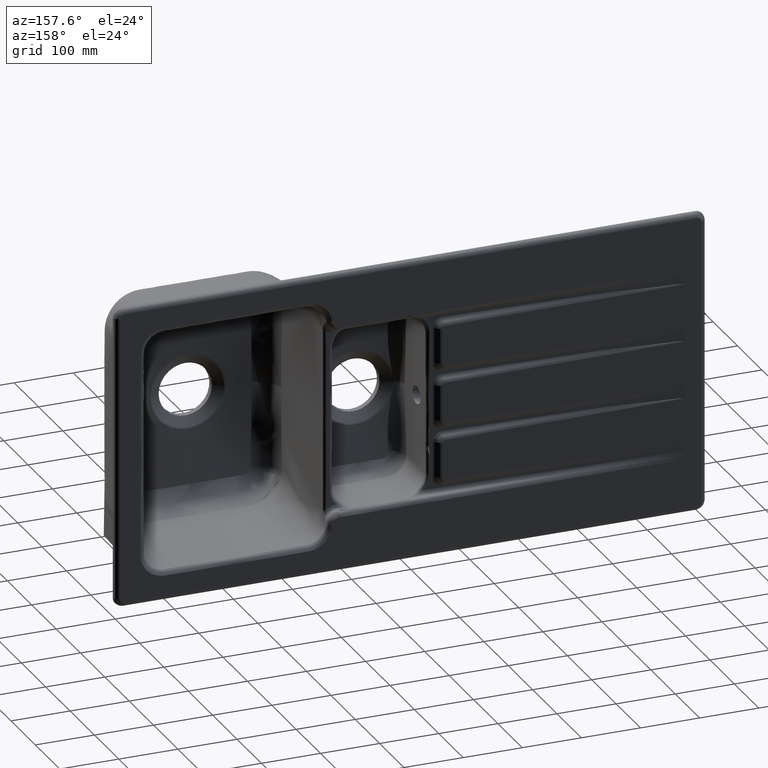
[diagram: clean part render]
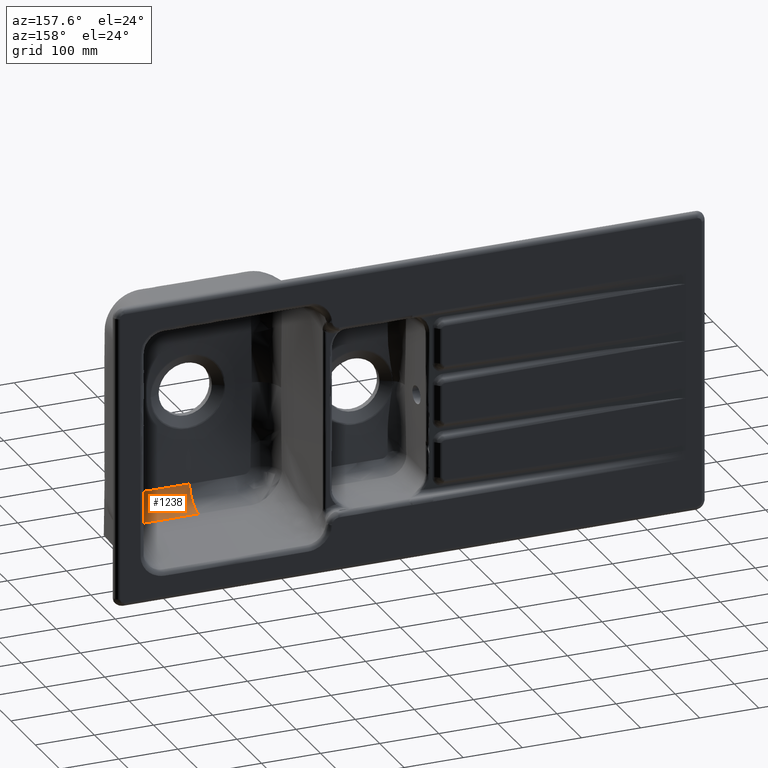
[diagram: same view with one face highlighted and labeled with its STEP entity id]
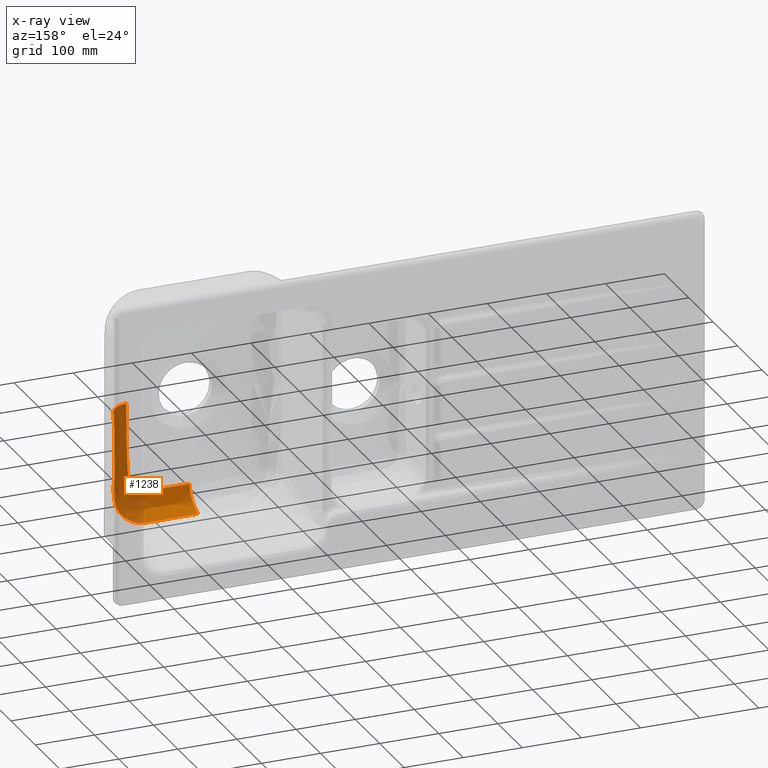
[diagram: x-ray of the same camera — body ghosted, the highlighted face saturated]
A machine part, auxiliary view. The second image highlights one B-rep face of the part: STEP entity #1238.
The next image is the same camera in x-ray: the body ghosted, the highlighted face saturated — about 55% of this face is hidden behind the body in this view.
In plain terms, the highlighted face is a freeform B-spline surface patch.
Its self-contained STEP definition (entity closure, byte-faithful):
#735=(
BOUNDED_SURFACE()
B_SPLINE_SURFACE(3,2,((#18417,#18418,#18419),(#18420,#18421,#18422),(#18423,
#18424,#18425),(#18426,#18427,#18428),(#18429,#18430,#18431),(#18432,#18433,
#18434),(#18435,#18436,#18437),(#18438,#18439,#18440),(#18441,#18442,#18443),
(#18444,#18445,#18446),(#18447,#18448,#18449),(#18450,#18451,#18452),(#18453,
#18454,#18455),(#18456,#18457,#18458),(#18459,#18460,#18461),(#18462,#18463,
#18464),(#18465,#18466,#18467),(#18468,#18469,#18470),(#18471,#18472,#18473),
(#18474,#18475,#18476),(#18477,#18478,#18479),(#18480,#18481,#18482),(#18483,
#18484,#18485),(#18486,#18487,#18488),(#18489,#18490,#18491),(#18492,#18493,
#18494),(#18495,#18496,#18497),(#18498,#18499,#18500),(#18501,#18502,#18503),
(#18504,#18505,#18506),(#18507,#18508,#18509),(#18510,#18511,#18512),(#18513,
#18514,#18515),(#18516,#18517,#18518),(#18519,#18520,#18521),(#18522,#18523,
#18524),(#18525,#18526,#18527),(#18528,#18529,#18530),(#18531,#18532,#18533),
(#18534,#18535,#18536),(#18537,#18538,#18539),(#18540,#18541,#18542),(#18543,
#18544,#18545),(#18546,#18547,#18548),(#18549,#18550,#18551),(#18552,#18553,
#18554),(#18555,#18556,#18557),(#18558,#18559,#18560),(#18561,#18562,#18563),
(#18564,#18565,#18566),(#18567,#18568,#18569),(#18570,#18571,#18572),(#18573,
#18574,#18575),(#18576,#18577,#18578),(#18579,#18580,#18581),(#18582,#18583,
#18584),(#18585,#18586,#18587),(#18588,#18589,#18590),(#18591,#18592,#18593),
(#18594,#18595,#18596),(#18597,#18598,#18599),(#18600,#18601,#18602),(#18603,
#18604,#18605),(#18606,#18607,#18608),(#18609,#18610,#18611),(#18612,#18613,
#18614),(#18615,#18616,#18617),(#18618,#18619,#18620),(#18621,#18622,#18623),
(#18624,#18625,#18626),(#18627,#18628,#18629),(#18630,#18631,#18632),(#18633,
#18634,#18635),(#18636,#18637,#18638),(#18639,#18640,#18641),(#18642,#18643,
#18644),(#18645,#18646,#18647),(#18648,#18649,#18650),(#18651,#18652,#18653),
(#18654,#18655,#18656),(#18657,#18658,#18659),(#18660,#18661,#18662),(#18663,
#18664,#18665),(#18666,#18667,#18668),(#18669,#18670,#18671),(#18672,#18673,
#18674),(#18675,#18676,#18677),(#18678,#18679,#18680),(#18681,#18682,#18683),
(#18684,#18685,#18686),(#18687,#18688,#18689),(#18690,#18691,#18692),(#18693,
#18694,#18695),(#18696,#18697,#18698),(#18699,#18700,#18701),(#18702,#18703,
#18704),(#18705,#18706,#18707),(#18708,#18709,#18710),(#18711,#18712,#18713),
(#18714,#18715,#18716),(#18717,#18718,#18719),(#18720,#18721,#18722),(#18723,
#18724,#18725),(#18726,#18727,#18728),(#18729,#18730,#18731),(#18732,#18733,
#18734),(#18735,#18736,#18737),(#18738,#18739,#18740),(#18741,#18742,#18743),
(#18744,#18745,#18746)),.UNSPECIFIED.,.F.,.F.,.F.)
B_SPLINE_SURFACE_WITH_KNOTS((4,2,2,2,2,2,2,2,2,2,2,2,2,2,2,2,2,2,2,2,2,
2,2,2,2,2,2,2,2,2,2,2,2,2,2,2,2,2,2,2,2,2,2,2,2,2,2,2,2,2,2,2,2,2,4),(3,
3),(0.,0.25,0.3125,0.34375,0.359375,0.3671875,0.375,0.3828125,0.390625,
0.40625,0.4375,0.5,0.53125,0.546875,0.554687499999999,0.55859375,0.560546875,
0.561523437499999,0.56201171875,0.562255859375,0.5625,0.56640625,0.5703125,
0.5712890625,0.572265625,0.5732421875,0.57421875,0.578125,0.585937499999999,
0.58984375,0.59375,0.6015625,0.60546875,0.609375,0.613281249999999,0.6142578125,
0.61474609375,0.615234374999999,0.6171875,0.62109375,0.625,0.626953125,
0.62744140625,0.6279296875,0.62890625,0.630859375,0.6328125,0.640625,0.65625,
0.671875,0.6875,0.703125,0.71875,0.75,1.),(0.,1.),.UNSPECIFIED.)
GEOMETRIC_REPRESENTATION_ITEM()
RATIONAL_B_SPLINE_SURFACE(((1.,0.780026739247145,1.),(1.,0.780026739247145,
1.),(1.,0.777640110577865,1.),(1.,0.774108614426913,1.),(1.,0.773385367538664,
1.),(1.,0.772315155848027,1.),(1.,0.771961712125106,1.),(1.,0.771439386398936,
1.),(1.,0.771266570983274,1.),(1.,0.771009542616276,1.),(1.,0.770925441648806,
1.),(1.,0.770741628197361,1.),(1.,0.770665175662651,1.),(1.,0.769933896476136,
1.),(1.,0.769401067736612,1.),(1.,0.768573799973342,1.),(1.,0.768194553752228,
1.),(1.,0.767129635772166,1.),(1.,0.766480258591021,1.),(1.,0.764646671751104,
1.),(1.,0.763570825107153,1.),(1.,0.760652931990413,1.),(1.,0.759056767673764,
1.),(1.,0.756827343430107,1.),(1.,0.756118875595375,1.),(1.,0.755094320713061,
1.),(1.,0.754754065908101,1.),(1.,0.75426272049236,1.),(1.,0.754116301711142,
1.),(1.,0.753847501869867,1.),(1.,0.753736412693911,1.),(1.,0.753605084066101,
1.),(1.,0.753558049122012,1.),(1.,0.753545386466869,1.),(1.,0.753551989974032,
1.),(1.,0.753597615682947,1.),(1.,0.753614136480759,1.),(1.,0.753673644740471,
1.),(1.,0.753698546372883,1.),(1.,0.753792850545745,1.),(1.,0.753894423174264,
1.),(1.,0.755511526624654,1.),(1.,0.757350899471768,1.),(1.,0.761632907822356,
1.),(1.,0.763917286002772,1.),(1.,0.767086357936328,1.),(1.,0.767738129330372,
1.),(1.,0.769067873949027,1.),(1.,0.769816806825657,1.),(1.,0.770837271724499,
1.),(1.,0.771263319624184,1.),(1.,0.77215439895676,1.),(1.,0.772592218487895,
1.),(1.,0.774744818624205,1.),(1.,0.776381143406241,1.),(1.,0.780746724437734,
1.),(1.,0.782904211866539,1.),(1.,0.785202534153921,1.),(1.,0.785823776796885,
1.),(1.,0.786798364524846,1.),(1.,0.787141784727903,1.),(1.,0.787718906245477,
1.),(1.,0.787524499333603,1.),(1.,0.786361199029166,1.),(1.,0.78583360870052,
1.),(1.,0.784456854954776,1.),(1.,0.783591832353732,1.),(1.,0.781508106455178,
1.),(1.,0.780318883452749,1.),(1.,0.778622626860873,1.),(1.,0.77827379249165,
1.),(1.,0.777731086199469,1.),(1.,0.777554953410516,1.),(1.,0.777149317785802,
1.),(1.,0.776897771621248,1.),(1.,0.77564150006989,1.),(1.,0.774683546124439,
1.),(1.,0.771932149423698,1.),(1.,0.770280863516583,1.),(1.,0.767330836324427,
1.),(1.,0.766059244437495,1.),(1.,0.764274799425149,1.),(1.,0.763699241937539,
1.),(1.,0.763001628753655,1.),(1.,0.762859511149344,1.),(1.,0.762592490801144,
1.),(1.,0.762515312097112,1.),(1.,0.762314941673535,1.),(1.,0.762239747590668,
1.),(1.,0.762059513565477,1.),(1.,0.76211313086823,1.),(1.,0.762177596800608,
1.),(1.,0.762220212991095,1.),(1.,0.762465241748784,1.),(1.,0.762625670331219,
1.),(1.,0.763115234317547,1.),(1.,0.763462035807551,1.),(1.,0.764164108570009,
1.),(1.,0.764527943607433,1.),(1.,0.765282088785618,1.),(1.,0.765761515802115,
1.),(1.,0.766330417235648,1.),(1.,0.766219430432923,1.),(1.,0.766346246542861,
1.),(1.,0.766406400389707,1.),(1.,0.76657762190852,1.),(1.,0.766684689340103,
1.),(1.,0.767604345136648,1.),(1.,0.768063924351153,1.),(1.,0.768025221203304,
1.)))
REPRESENTATION_ITEM('')
SURFACE()
);
#959=CIRCLE('',#7225,40.000003109019);
#1238=ADVANCED_FACE('',(#1785),#735,.T.);
#1785=FACE_OUTER_BOUND('',#2242,.T.);
#2242=EDGE_LOOP('',(#3389,#3390,#3391,#3392));
#2715=B_SPLINE_CURVE_WITH_KNOTS('',3,(#15589,#15590,#15591,#15592,#15593,
#15594,#15595,#15596,#15597,#15598,#15599,#15600,#15601,#15602,#15603,#15604,
#15605,#15606,#15607,#15608,#15609,#15610,#15611,#15612,#15613,#15614,#15615,
#15616,#15617,#15618,#15619,#15620,#15621,#15622,#15623,#15624,#15625,#15626,
#15627,#15628,#15629,#15630,#15631,#15632,#15633,#15634,#15635,#15636,#15637,
#15638,#15639,#15640,#15641,#15642,#15643,#15644,#15645,#15646,#15647,#15648,
#15649,#15650,#15651,#15652,#15653,#15654,#15655,#15656,#15657,#15658,#15659,
#15660,#15661,#15662,#15663,#15664,#15665,#15666,#15667,#15668,#15669,#15670,
#15671,#15672,#15673,#15674,#15675,#15676,#15677,#15678,#15679,#15680,#15681,
#15682,#15683,#15684,#15685),.UNSPECIFIED.,.F.,.F.,(4,2,2,2,2,2,2,2,2,2,
2,1,2,2,2,2,1,2,2,2,2,2,2,2,2,1,1,1,2,2,2,2,2,2,2,2,2,2,2,2,2,2,2,2,2,1,
1,1,1,2,2,2,4),(0.,0.250000000000016,0.375000000000023,0.437500000000027,
0.468750000000029,0.48437500000003,0.48828125000003,0.48925781250003,0.48974609375003,
0.49023437500003,0.49072265625003,0.49121093750003,0.49218750000003,0.496093750000031,
0.498046875000031,0.499023437500031,0.499511718750031,0.499755859375031,
0.499877929687531,0.500000000000031,0.531250000000047,0.562500000000062,
0.593750000000077,0.609375000000085,0.617187500000089,0.621093750000091,
0.623046875000092,0.624023437500092,0.624511718750092,0.625000000000093,
0.632812500000095,0.634765625000096,0.636718750000097,0.640625000000098,
0.648437500000101,0.652343750000102,0.654296875000103,0.656250000000104,
0.658203125000104,0.660156250000105,0.664062500000106,0.671875000000109,
0.687500000000113,0.718750000000123,0.734375000000129,0.742187500000132,
0.746093750000133,0.748046875000134,0.749023437500135,0.749511718750135,
0.750000000000135,0.875000000000068,1.),.UNSPECIFIED.);
#2727=B_SPLINE_CURVE_WITH_KNOTS('',3,(#18248,#18249,#18250,#18251,#18252,
#18253,#18254,#18255,#18256,#18257,#18258,#18259,#18260,#18261,#18262,#18263,
#18264,#18265,#18266,#18267,#18268,#18269,#18270,#18271,#18272,#18273,#18274,
#18275,#18276,#18277,#18278,#18279,#18280,#18281,#18282,#18283,#18284,#18285,
#18286,#18287,#18288,#18289,#18290,#18291,#18292,#18293,#18294,#18295,#18296,
#18297,#18298,#18299,#18300,#18301,#18302,#18303,#18304,#18305,#18306,#18307,
#18308,#18309,#18310,#18311,#18312,#18313,#18314,#18315,#18316,#18317,#18318,
#18319,#18320,#18321,#18322,#18323,#18324,#18325,#18326,#18327,#18328,#18329,
#18330,#18331,#18332,#18333,#18334,#18335,#18336,#18337,#18338,#18339,#18340,
#18341,#18342,#18343,#18344,#18345,#18346,#18347,#18348,#18349,#18350,#18351,
#18352,#18353,#18354,#18355,#18356,#18357,#18358,#18359,#18360,#18361,#18362,
#18363,#18364,#18365,#18366,#18367,#18368,#18369,#18370,#18371,#18372,#18373,
#18374,#18375,#18376,#18377,#18378,#18379,#18380,#18381,#18382,#18383,#18384,
#18385,#18386,#18387,#18388,#18389,#18390,#18391,#18392,#18393,#18394,#18395,
#18396,#18397,#18398,#18399,#18400,#18401,#18402,#18403,#18404,#18405,#18406,
#18407,#18408,#18409,#18410,#18411,#18412,#18413,#18414,#18415,#18416),
 .UNSPECIFIED.,.F.,.F.,(4,2,2,2,2,1,2,2,2,2,1,2,2,2,1,1,1,1,2,2,2,2,2,1,
2,2,2,2,2,1,2,2,2,2,2,2,2,2,2,1,1,2,2,2,2,2,2,2,2,2,2,2,2,2,2,2,2,2,2,2,
2,2,2,2,2,1,1,2,2,2,2,2,2,2,2,2,2,2,2,2,2,1,2,2,2,2,2,1,1,2,2,4),(0.,0.12499999999999,
0.187499999999985,0.218749999999982,0.234374999999981,0.24218749999998,
0.24609374999998,0.249999999999979,0.281249999999977,0.296874999999975,
0.304687499999975,0.308593749999974,0.312499999999974,0.328124999999973,
0.335937499999972,0.339843749999971,0.341796874999971,0.342773437499971,
0.343261718749971,0.343749999999971,0.359374999999968,0.367187499999966,
0.371093749999966,0.373046874999965,0.374023437499965,0.374999999999965,
0.406249999999958,0.421874999999955,0.429687499999954,0.433593749999953,
0.435546874999953,0.437499999999952,0.468749999999943,0.484374999999939,
0.492187499999937,0.496093749999936,0.499999999999935,0.531249999999925,
0.54687499999992,0.554687499999918,0.558593749999917,0.560546874999916,
0.562499999999915,0.566406249999915,0.568359374999914,0.570312499999914,
0.574218749999913,0.578124999999912,0.58593749999991,0.593749999999908,
0.609374999999904,0.617187499999903,0.621093749999902,0.624999999999902,
0.628906249999901,0.6328124999999,0.6367187499999,0.6386718749999,0.640624999999899,
0.648437499999897,0.652343749999897,0.654296874999896,0.656249999999896,
0.671874999999891,0.679687499999888,0.683593749999887,0.685546874999886,
0.686523437499886,0.687499999999885,0.695312499999886,0.699218749999886,
0.701171874999886,0.702148437499886,0.702636718749886,0.703124999999886,
0.710937499999889,0.714843749999891,0.716796874999892,0.718749999999892,
0.734374999999901,0.742187499999905,0.746093749999907,0.748046874999908,
0.749999999999909,0.812499999999933,0.843749999999945,0.859374999999951,
0.867187499999954,0.871093749999956,0.873046874999956,0.874999999999957,
1.),.UNSPECIFIED.);
#3389=ORIENTED_EDGE('',*,*,#6069,.T.);
#3390=ORIENTED_EDGE('',*,*,#6136,.F.);
#3391=ORIENTED_EDGE('',*,*,#6137,.F.);
#3392=ORIENTED_EDGE('',*,*,#6134,.T.);
#5401=VERTEX_POINT('',#14391);
#5427=VERTEX_POINT('',#15200);
#5464=VERTEX_POINT('',#17780);
#5465=VERTEX_POINT('',#18247);
#6069=EDGE_CURVE('',#5401,#5427,#2715,.T.);
#6134=EDGE_CURVE('',#5464,#5401,#7102,.T.);
#6136=EDGE_CURVE('',#5465,#5427,#959,.T.);
#6137=EDGE_CURVE('',#5464,#5465,#2727,.T.);
#7102=(
BOUNDED_CURVE()
B_SPLINE_CURVE(2,(#17777,#17778,#17779),.UNSPECIFIED.,.F.,.F.)
B_SPLINE_CURVE_WITH_KNOTS((3,3),(0.,1.),.UNSPECIFIED.)
CURVE()
GEOMETRIC_REPRESENTATION_ITEM()
RATIONAL_B_SPLINE_CURVE((1.,0.780026739247145,1.))
REPRESENTATION_ITEM('')
);
#7225=AXIS2_PLACEMENT_3D('',#18246,#7799,#7800);
#7799=DIRECTION('',(0.999999999919984,1.26490159848983E-5,-1.85925221895674E-7));
#7800=DIRECTION('',(-1.26490159854181E-5,0.999999999920001,0.));
#14391=CARTESIAN_POINT('',(436.051988911836,-158.802344045964,-2.72442016075284E-6));
#15200=CARTESIAN_POINT('',(294.999917440315,-156.289445062105,-191.292521572357));
#15589=CARTESIAN_POINT('',(436.051988911837,-158.802344045959,3.34282740161994E-6));
#15590=CARTESIAN_POINT('',(436.051987346589,-158.802357575084,-23.9487446419314));
#15591=CARTESIAN_POINT('',(436.07461586467,-158.587543324088,-47.8973306737301));
#15592=CARTESIAN_POINT('',(436.121195572224,-158.143455709156,-83.8198406282767));
#15593=CARTESIAN_POINT('',(436.131075308158,-158.057837563462,-95.7958893202917));
#15594=CARTESIAN_POINT('',(436.188792468448,-157.471015887512,-113.748821254531));
#15595=CARTESIAN_POINT('',(436.212760894904,-157.223704307798,-119.73215233032));
#15596=CARTESIAN_POINT('',(436.253660225968,-156.800291314576,-128.703962599986));
#15597=CARTESIAN_POINT('',(436.268143603932,-156.65014226808,-131.694723816194));
#15598=CARTESIAN_POINT('',(436.291180103742,-156.412632620153,-136.176653253597));
#15599=CARTESIAN_POINT('',(436.298208051999,-156.337259231693,-137.725918788701));
#15600=CARTESIAN_POINT('',(436.308735872948,-156.227054050929,-139.531222709094));
#15601=CARTESIAN_POINT('',(436.311352023279,-156.202453825187,-139.869677935721));
#15602=CARTESIAN_POINT('',(436.313744708757,-156.179796280751,-140.371821066615));
#15603=CARTESIAN_POINT('',(436.314176764256,-156.17583572215,-140.477834042106));
#15604=CARTESIAN_POINT('',(436.314338334194,-156.172812235468,-140.664381467851));
#15605=CARTESIAN_POINT('',(436.314315441552,-156.172254857446,-140.730809345605));
#15606=CARTESIAN_POINT('',(436.313966903285,-156.17259970084,-140.877261730826));
#15607=CARTESIAN_POINT('',(436.314147861053,-156.170921079455,-140.933108802714));
#15608=CARTESIAN_POINT('',(436.310328070539,-156.190351362899,-141.258844186524));
#15609=CARTESIAN_POINT('',(436.305699600391,-156.210417307468,-141.516996428639));
#15610=CARTESIAN_POINT('',(436.294175979808,-156.243947972593,-141.962771966183));
#15611=CARTESIAN_POINT('',(436.272025456295,-156.296344307981,-142.640276594334));
#15612=CARTESIAN_POINT('',(436.234194782974,-156.355125569626,-143.342887868793));
#15613=CARTESIAN_POINT('',(436.06842610843,-156.565624780306,-145.73441880121));
#15614=CARTESIAN_POINT('',(435.803111821892,-156.781737087294,-147.800960112924));
#15615=CARTESIAN_POINT('',(435.179297683773,-157.154452857308,-150.877676602549));
#15616=CARTESIAN_POINT('',(434.932416073103,-157.288911620929,-151.917460881312));
#15617=CARTESIAN_POINT('',(434.49351738818,-157.507556099799,-153.5039699453));
#15618=CARTESIAN_POINT('',(434.325634194826,-157.58887714218,-154.063808004431));
#15619=CARTESIAN_POINT('',(434.137134185007,-157.671372364625,-154.668177330289));
#15620=CARTESIAN_POINT('',(434.046955786774,-157.709091106982,-154.95134852585));
#15621=CARTESIAN_POINT('',(433.954792645274,-157.745801045921,-155.232212510178));
#15622=CARTESIAN_POINT('',(433.907705937871,-157.764344923153,-155.374444382956));
#15623=CARTESIAN_POINT('',(433.891866497066,-157.770545051328,-155.422077711493));
#15624=CARTESIAN_POINT('',(433.86008666951,-157.782882673856,-155.517177560595));
#15625=CARTESIAN_POINT('',(433.832058520728,-157.793646216641,-155.600481678392));
#15626=CARTESIAN_POINT('',(432.807861382098,-158.185261384771,-158.636310132593));
#15627=CARTESIAN_POINT('',(431.418369519654,-158.513493606143,-161.758559278951));
#15628=CARTESIAN_POINT('',(428.263957820503,-158.949695348021,-167.372684031004));
#15629=CARTESIAN_POINT('',(426.503068309887,-159.074504043413,-169.940092527836));
#15630=CARTESIAN_POINT('',(422.426239346693,-159.164713245877,-174.890261898651));
#15631=CARTESIAN_POINT('',(420.184935766259,-159.123582343326,-177.165817538123));
#15632=CARTESIAN_POINT('',(416.541430127856,-158.93488182155,-180.263458724091));
#15633=CARTESIAN_POINT('',(415.289665168404,-158.851419392334,-181.23579606845));
#15634=CARTESIAN_POINT('',(413.3293677632,-158.692438253631,-182.621550001967));
#15635=CARTESIAN_POINT('',(412.659303839297,-158.633602391407,-183.073450438507));
#15636=CARTESIAN_POINT('',(411.620069898002,-158.535100252733,-183.739208810261));
#15637=CARTESIAN_POINT('',(411.093044751567,-158.483394495099,-184.0683558027));
#15638=CARTESIAN_POINT('',(410.467171894891,-158.418835055427,-184.444008741811));
#15639=CARTESIAN_POINT('',(410.151727185317,-158.385503777744,-184.629519671657));
#15640=CARTESIAN_POINT('',(410.016025277937,-158.370994409494,-184.708503786471));
#15641=CARTESIAN_POINT('',(409.925446621477,-158.361271689433,-184.761041471777));
#15642=CARTESIAN_POINT('',(409.928795762405,-158.361653020623,-184.7592040019));
#15643=CARTESIAN_POINT('',(408.329224609908,-158.188614802533,-185.680539635715));
#15644=CARTESIAN_POINT('',(406.799562845473,-158.00270500033,-186.462586039796));
#15645=CARTESIAN_POINT('',(404.841269243806,-157.73929822625,-187.345318888435));
#15646=CARTESIAN_POINT('',(404.49427163636,-157.691791270482,-187.497717584533));
#15647=CARTESIAN_POINT('',(403.549606812035,-157.558261029995,-187.894578860044));
#15648=CARTESIAN_POINT('',(402.980501786432,-157.478751967049,-188.122852106904));
#15649=CARTESIAN_POINT('',(401.396827687437,-157.26630707536,-188.720857752676));
#15650=CARTESIAN_POINT('',(400.347842628051,-157.134409939114,-189.072244932172));
#15651=CARTESIAN_POINT('',(397.238610080625,-156.768260835161,-189.996881233362));
#15652=CARTESIAN_POINT('',(395.217480952116,-156.563887124954,-190.441958518611));
#15653=CARTESIAN_POINT('',(392.251336392613,-156.309293963749,-190.909317751214));
#15654=CARTESIAN_POINT('',(391.265595736765,-156.232313365314,-191.032193555074));
#15655=CARTESIAN_POINT('',(389.749911619899,-156.124665882759,-191.173880070466));
#15656=CARTESIAN_POINT('',(389.238065594689,-156.090146331595,-191.213614074819));
#15657=CARTESIAN_POINT('',(388.197542727946,-156.023909696514,-191.276868915072));
#15658=CARTESIAN_POINT('',(387.600859006959,-155.987343008024,-191.302133226803));
#15659=CARTESIAN_POINT('',(386.687128315386,-155.938535376624,-191.32730667978));
#15660=CARTESIAN_POINT('',(386.45035344655,-155.931102781023,-191.329135179784));
#15661=CARTESIAN_POINT('',(385.983511383521,-155.916672070807,-191.333206061509));
#15662=CARTESIAN_POINT('',(385.808550118129,-155.913667985423,-191.333742082433));
#15663=CARTESIAN_POINT('',(385.43084509342,-155.914686815847,-191.333611030736));
#15664=CARTESIAN_POINT('',(385.256354200008,-155.920620695433,-191.332574345671));
#15665=CARTESIAN_POINT('',(384.69699291896,-155.935559434747,-191.33053797575));
#15666=CARTESIAN_POINT('',(384.342257691954,-155.946321177793,-191.329464512415));
#15667=CARTESIAN_POINT('',(383.205418566436,-155.972853372405,-191.327079595297));
#15668=CARTESIAN_POINT('',(382.425435323454,-155.988032532997,-191.325590106125));
#15669=CARTESIAN_POINT('',(380.128758534972,-156.033006261384,-191.32102161521));
#15670=CARTESIAN_POINT('',(378.602626806994,-156.058713164939,-191.318414118166));
#15671=CARTESIAN_POINT('',(376.306247270108,-156.089120583901,-191.315366813902));
#15672=CARTESIAN_POINT('',(375.540698188816,-156.097975894401,-191.314480001264));
#15673=CARTESIAN_POINT('',(374.392214373106,-156.109158953612,-191.313352222359));
#15674=CARTESIAN_POINT('',(373.817931156237,-156.114224230967,-191.312839044505));
#15675=CARTESIAN_POINT('',(373.147885796004,-156.11922680144,-191.312326674556));
#15676=CARTESIAN_POINT('',(372.812854049881,-156.121503109551,-191.312091772989));
#15677=CARTESIAN_POINT('',(372.645336285638,-156.12258523843,-191.311979605434));
#15678=CARTESIAN_POINT('',(372.573542593066,-156.123037026031,-191.311932661714));
#15679=CARTESIAN_POINT('',(372.5256800547,-156.123335557725,-191.31190161614));
#15680=CARTESIAN_POINT('',(372.554973151071,-156.123157432625,-191.311920185817));
#15681=CARTESIAN_POINT('',(352.725946048699,-156.244633118493,-191.299265475492));
#15682=CARTESIAN_POINT('',(336.394150246403,-156.245156170014,-191.297874993458));
#15683=CARTESIAN_POINT('',(310.569143246839,-156.287043415464,-191.292855906956));
#15684=CARTESIAN_POINT('',(301.075277516177,-156.289520992619,-191.292527995948));
#15685=CARTESIAN_POINT('',(295.000033009702,-156.289445109344,-191.292522053803));
#17777=CARTESIAN_POINT('',(401.14437071683,-194.683135881313,8.14919140383179E-6));
#17778=CARTESIAN_POINT('',(432.990166280449,-190.744381034778,4.45758306943978E-6));
#17779=CARTESIAN_POINT('',(436.051988911836,-158.802344045967,-1.09590134147593E-5));
#17780=CARTESIAN_POINT('',(401.144370716829,-194.683135881312,-2.77404614099605E-6));
#18246=CARTESIAN_POINT('',(294.999761094439,-152.482397570058,-151.474104109417));
#18247=CARTESIAN_POINT('',(295.000148740928,-192.336660098569,-154.885533391064));
#18248=CARTESIAN_POINT('',(401.144370716832,-194.683135881316,3.34262333090418E-6));
#18249=CARTESIAN_POINT('',(401.144373742739,-194.683140202871,-10.00616074003));
#18250=CARTESIAN_POINT('',(401.105691170644,-194.657898886046,-20.1552510872413));
#18251=CARTESIAN_POINT('',(400.946727092469,-194.581623534307,-35.8862188218408));
#18252=CARTESIAN_POINT('',(400.878605475903,-194.549788302141,-41.2135515131258));
#18253=CARTESIAN_POINT('',(400.761366242283,-194.492292454532,-49.3645181745405));
#18254=CARTESIAN_POINT('',(400.719740508433,-194.471502618035,-52.1081935748195));
#18255=CARTESIAN_POINT('',(400.655671622105,-194.437865323666,-56.2684472411058));
#18256=CARTESIAN_POINT('',(400.6340663193,-194.426244200651,-57.662659370724));
#18257=CARTESIAN_POINT('',(400.601645668364,-194.408197560684,-59.7657943706765));
#18258=CARTESIAN_POINT('',(400.585432522368,-194.399020499715,-60.8203164620406));
#18259=CARTESIAN_POINT('',(400.569285988837,-194.389612447831,-61.8793914149057));
#18260=CARTESIAN_POINT('',(400.558544527366,-194.383289038351,-62.5864668424709));
#18261=CARTESIAN_POINT('',(400.552499258679,-194.379689183434,-62.9860330949437));
#18262=CARTESIAN_POINT('',(400.510579064445,-194.35448343478,-65.7675211746544));
#18263=CARTESIAN_POINT('',(400.471910577397,-194.330478301299,-68.3194028990861));
#18264=CARTESIAN_POINT('',(400.412007059381,-194.292065790042,-72.2727754410198));
#18265=CARTESIAN_POINT('',(400.391728033379,-194.278860783395,-73.6114977861389));
#18266=CARTESIAN_POINT('',(400.360922507063,-194.258451086323,-75.6518403278061));
#18267=CARTESIAN_POINT('',(400.3454235833,-194.2480956873,-76.6800770753702));
#18268=CARTESIAN_POINT('',(400.329800715763,-194.237514252432,-77.7205804331059));
#18269=CARTESIAN_POINT('',(400.31936208717,-194.230409710843,-78.4169948165449));
#18270=CARTESIAN_POINT('',(400.313576706246,-194.226451125416,-78.8037106196205));
#18271=CARTESIAN_POINT('',(400.290148548264,-194.210344411539,-80.3728443233427));
#18272=CARTESIAN_POINT('',(400.271084567252,-194.196999718387,-81.659263008488));
#18273=CARTESIAN_POINT('',(400.242034333073,-194.176293390682,-83.6366845518968));
#18274=CARTESIAN_POINT('',(400.227396547764,-194.165767900959,-84.6373449089226));
#18275=CARTESIAN_POINT('',(400.210137939798,-194.15318648241,-85.8259533195077));
#18276=CARTESIAN_POINT('',(400.201466105625,-194.146820335731,-86.4255838365614));
#18277=CARTESIAN_POINT('',(400.197119924994,-194.143618400773,-86.7267348892088));
#18278=CARTESIAN_POINT('',(400.195255118648,-194.142242100906,-86.8560863224789));
#18279=CARTESIAN_POINT('',(400.194011439754,-194.141323669403,-86.9423843723601));
#18280=CARTESIAN_POINT('',(400.193835797182,-194.141194081307,-86.9545652536768));
#18281=CARTESIAN_POINT('',(400.158567182341,-194.115117784655,-89.4035888252758));
#18282=CARTESIAN_POINT('',(400.125323887886,-194.095772043079,-91.2598502363566));
#18283=CARTESIAN_POINT('',(400.083046819697,-194.075642223703,-93.2424375565937));
#18284=CARTESIAN_POINT('',(400.070340088594,-194.070415120069,-93.7698206850236));
#18285=CARTESIAN_POINT('',(400.050189248266,-194.064793860313,-94.3595577610017));
#18286=CARTESIAN_POINT('',(400.043413943394,-194.063290043474,-94.522564501963));
#18287=CARTESIAN_POINT('',(400.033899513904,-194.061589300163,-94.7164423681777));
#18288=CARTESIAN_POINT('',(400.029311075353,-194.060877674051,-94.8007227930918));
#18289=CARTESIAN_POINT('',(400.025128180353,-194.060374211516,-94.8659698731419));
#18290=CARTESIAN_POINT('',(400.022444370742,-194.060084835401,-94.9052342840041));
#18291=CARTESIAN_POINT('',(400.025532400366,-194.060313397416,-94.8679773905323));
#18292=CARTESIAN_POINT('',(399.840468803747,-194.045511673821,-97.183553441216));
#18293=CARTESIAN_POINT('',(399.678740622514,-194.012149820586,-99.6214887472808));
#18294=CARTESIAN_POINT('',(399.471921087175,-193.933455246376,-103.569730610017));
#18295=CARTESIAN_POINT('',(399.407717347168,-193.90244705817,-104.934457395805));
#18296=CARTESIAN_POINT('',(399.314365890582,-193.848742627202,-107.055031345226));
#18297=CARTESIAN_POINT('',(399.283688246379,-193.829642396197,-107.774152994656));
#18298=CARTESIAN_POINT('',(399.237936153239,-193.799190105124,-108.871138675158));
#18299=CARTESIAN_POINT('',(399.215131790031,-193.78351347007,-109.424203489262));
#18300=CARTESIAN_POINT('',(399.19236622066,-193.767160344685,-109.984095723376));
#18301=CARTESIAN_POINT('',(399.177189242998,-193.756107842793,-110.358870684977));
#18302=CARTESIAN_POINT('',(399.168125502309,-193.749403357724,-110.583719325392));
#18303=CARTESIAN_POINT('',(399.064129101583,-193.671650663132,-113.171028227227));
#18304=CARTESIAN_POINT('',(398.972893285377,-193.586223352631,-115.708654519984));
#18305=CARTESIAN_POINT('',(398.841212142939,-193.439565273412,-119.662064023101));
#18306=CARTESIAN_POINT('',(398.798316378302,-193.387592849835,-121.004338341199));
#18307=CARTESIAN_POINT('',(398.735436740497,-193.304984391643,-123.053324080289));
#18308=CARTESIAN_POINT('',(398.714716382813,-193.27667325043,-123.74224614745));
#18309=CARTESIAN_POINT('',(398.683953773565,-193.233041371836,-124.784356015668));
#18310=CARTESIAN_POINT('',(398.673752316312,-193.218303216795,-125.133180270737));
#18311=CARTESIAN_POINT('',(398.653445218216,-193.188438056106,-125.833708122397));
#18312=CARTESIAN_POINT('',(398.642151952527,-193.17150288799,-126.227085565864));
#18313=CARTESIAN_POINT('',(398.562269537583,-193.049881367814,-129.030172428398));
#18314=CARTESIAN_POINT('',(398.493166061037,-192.931903635628,-131.596180169877));
#18315=CARTESIAN_POINT('',(398.392458483247,-192.74000031135,-135.549325142223));
#18316=CARTESIAN_POINT('',(398.359412018757,-192.67354295126,-136.884386980388));
#18317=CARTESIAN_POINT('',(398.310586148098,-192.570104779139,-138.911823529907));
#18318=CARTESIAN_POINT('',(398.286357485208,-192.517447647587,-139.931749460247));
#18319=CARTESIAN_POINT('',(398.258389131155,-192.454368740738,-141.132234247914));
#18320=CARTESIAN_POINT('',(398.246463276587,-192.426981861238,-141.648959454783));
#18321=CARTESIAN_POINT('',(398.238525782377,-192.408645434616,-141.99393507982));
#18322=CARTESIAN_POINT('',(398.235833257113,-192.402406412531,-142.111138210658));
#18323=CARTESIAN_POINT('',(398.220158160014,-192.365760845403,-142.796666644324));
#18324=CARTESIAN_POINT('',(398.202715544423,-192.345039939714,-143.187947605891));
#18325=CARTESIAN_POINT('',(398.168927393246,-192.319534086778,-143.676980130751));
#18326=CARTESIAN_POINT('',(398.156384816891,-192.311961343878,-143.823675654264));
#18327=CARTESIAN_POINT('',(398.129107943459,-192.298675649144,-144.08454468237));
#18328=CARTESIAN_POINT('',(398.122002868271,-192.295289317571,-144.151061912543));
#18329=CARTESIAN_POINT('',(398.052067847463,-192.2739618496,-144.587914346566));
#18330=CARTESIAN_POINT('',(397.986619432414,-192.25982803773,-144.890202360509));
#18331=CARTESIAN_POINT('',(397.816706600378,-192.231728892251,-145.515577833984));
#18332=CARTESIAN_POINT('',(397.69886683449,-192.216275021733,-145.874337943215));
#18333=CARTESIAN_POINT('',(397.364821568516,-192.179096447125,-146.765299242738));
#18334=CARTESIAN_POINT('',(397.093702428741,-192.156349178563,-147.34714446783));
#18335=CARTESIAN_POINT('',(396.452361077898,-192.11493776336,-148.480176163996));
#18336=CARTESIAN_POINT('',(396.110798196969,-192.097406272877,-148.995101031841));
#18337=CARTESIAN_POINT('',(394.762893662592,-192.044147430204,-150.700217857914));
#18338=CARTESIAN_POINT('',(393.769039338202,-192.02029054994,-151.628958303721));
#18339=CARTESIAN_POINT('',(392.166052894833,-192.002019688114,-152.711695551479));
#18340=CARTESIAN_POINT('',(391.613003471303,-191.998848047167,-153.021013979415));
#18341=CARTESIAN_POINT('',(390.758865299769,-191.998469778251,-153.408463735586));
#18342=CARTESIAN_POINT('',(390.470055789098,-191.999073527109,-153.524861375569));
#18343=CARTESIAN_POINT('',(389.884795114675,-192.001740588333,-153.732322512415));
#18344=CARTESIAN_POINT('',(389.555222391583,-192.004112247154,-153.832051503684));
#18345=CARTESIAN_POINT('',(389.021450003174,-192.009081422149,-153.971699983952));
#18346=CARTESIAN_POINT('',(388.726767979131,-192.012789035477,-154.031894647251));
#18347=CARTESIAN_POINT('',(388.08197079518,-192.022648443113,-154.130837200474));
#18348=CARTESIAN_POINT('',(387.693047468718,-192.029557812285,-154.172337021856));
#18349=CARTESIAN_POINT('',(387.015338587469,-192.042787828333,-154.220404506327));
#18350=CARTESIAN_POINT('',(386.681604113257,-192.049484407647,-154.2382986899));
#18351=CARTESIAN_POINT('',(386.188893932908,-192.059651735196,-154.256466717008));
#18352=CARTESIAN_POINT('',(386.025972074848,-192.063061254088,-154.261076971564));
#18353=CARTESIAN_POINT('',(385.702788900392,-192.069921127588,-154.267492737655));
#18354=CARTESIAN_POINT('',(385.507472218988,-192.074137099532,-154.269396390472));
#18355=CARTESIAN_POINT('',(384.888163326812,-192.087662915145,-154.27113518452));
#18356=CARTESIAN_POINT('',(384.313102901364,-192.098881185451,-154.286104719004));
#18357=CARTESIAN_POINT('',(383.331052153672,-192.116299295135,-154.317435831806));
#18358=CARTESIAN_POINT('',(382.983797031349,-192.122203766852,-154.329325205755));
#18359=CARTESIAN_POINT('',(382.433132874193,-192.13120727524,-154.34759848272));
#18360=CARTESIAN_POINT('',(382.244615326349,-192.134232910574,-154.353760804957));
#18361=CARTESIAN_POINT('',(381.857677866483,-192.140332960047,-154.365916548601));
#18362=CARTESIAN_POINT('',(381.624529731353,-192.143936561761,-154.372891202378));
#18363=CARTESIAN_POINT('',(380.106886891182,-192.167062385195,-154.415772265204));
#18364=CARTESIAN_POINT('',(378.776626118577,-192.183726508854,-154.455296545932));
#18365=CARTESIAN_POINT('',(376.811911678526,-192.202896424538,-154.515988069775));
#18366=CARTESIAN_POINT('',(376.162133929891,-192.208315333981,-154.536415846797));
#18367=CARTESIAN_POINT('',(375.19546695868,-192.214988415408,-154.567324462172));
#18368=CARTESIAN_POINT('',(374.714128802015,-192.217961132592,-154.58285832283));
#18369=CARTESIAN_POINT('',(374.156113267613,-192.220792874793,-154.601158319605));
#18370=CARTESIAN_POINT('',(373.917729716472,-192.221870129168,-154.60904272564));
#18371=CARTESIAN_POINT('',(373.758978298104,-192.222558003739,-154.614308597469));
#18372=CARTESIAN_POINT('',(373.635402571696,-192.22306216102,-154.618423958976));
#18373=CARTESIAN_POINT('',(373.321132382207,-192.224306650231,-154.628909848738));
#18374=CARTESIAN_POINT('',(372.852203967567,-192.22559105759,-154.650605459457));
#18375=CARTESIAN_POINT('',(371.868863830724,-192.227777013279,-154.678304275219));
#18376=CARTESIAN_POINT('',(371.494570920404,-192.228548567001,-154.686078544466));
#18377=CARTESIAN_POINT('',(370.863523090804,-192.229771543759,-154.695624651879));
#18378=CARTESIAN_POINT('',(370.641564587777,-192.230190193602,-154.698505721085));
#18379=CARTESIAN_POINT('',(370.2911359269,-192.230834949536,-154.702980074417));
#18380=CARTESIAN_POINT('',(370.171410428022,-192.231052666579,-154.704501921964));
#18381=CARTESIAN_POINT('',(369.987430531718,-192.231383493296,-154.70695614849));
#18382=CARTESIAN_POINT('',(369.925371562232,-192.23149447822,-154.707805234096));
#18383=CARTESIAN_POINT('',(369.799788753718,-192.231717869945,-154.709569522129));
#18384=CARTESIAN_POINT('',(369.701682745963,-192.231891156315,-154.710992860737));
#18385=CARTESIAN_POINT('',(369.197236506952,-192.232779200419,-154.718416822157));
#18386=CARTESIAN_POINT('',(368.631997933688,-192.233954069037,-154.72542289737));
#18387=CARTESIAN_POINT('',(367.649255219172,-192.236225592817,-154.73442471646));
#18388=CARTESIAN_POINT('',(367.2992063689,-192.237067606636,-154.737104932415));
#18389=CARTESIAN_POINT('',(366.740531891031,-192.238458078795,-154.74058093636));
#18390=CARTESIAN_POINT('',(366.548706956146,-192.238942811902,-154.741649127593));
#18391=CARTESIAN_POINT('',(366.153874969351,-192.239954800212,-154.743595339981));
#18392=CARTESIAN_POINT('',(365.906606050044,-192.240598453222,-154.744638594573));
#18393=CARTESIAN_POINT('',(364.427665321493,-192.244487703164,-154.750159850405));
#18394=CARTESIAN_POINT('',(363.115380643297,-192.247962917421,-154.753289162307));
#18395=CARTESIAN_POINT('',(361.150270742994,-192.253203622456,-154.75592796268));
#18396=CARTESIAN_POINT('',(360.495787931415,-192.254955153003,-154.75644860549));
#18397=CARTESIAN_POINT('',(359.514875406817,-192.257589428315,-154.756718339173));
#18398=CARTESIAN_POINT('',(359.0246218541,-192.258908310865,-154.756725883337));
#18399=CARTESIAN_POINT('',(358.53467108589,-192.260229817397,-154.756542414793));
#18400=CARTESIAN_POINT('',(358.208104441699,-192.261111405594,-154.756377523691));
#18401=CARTESIAN_POINT('',(358.010688432211,-192.261644885978,-154.756247629582));
#18402=CARTESIAN_POINT('',(353.752041494969,-192.273161356288,-154.752985319677));
#18403=CARTESIAN_POINT('',(349.061679051566,-192.283360120742,-154.769334064144));
#18404=CARTESIAN_POINT('',(341.197737188559,-192.297325039697,-154.801582127805));
#18405=CARTESIAN_POINT('',(338.438333831454,-192.30175825997,-154.813553041177));
#18406=CARTESIAN_POINT('',(334.093403709611,-192.308094792542,-154.830063760834));
#18407=CARTESIAN_POINT('',(332.610787089895,-192.310154785498,-154.835322376127));
#18408=CARTESIAN_POINT('',(330.335541588296,-192.3131692096,-154.842397356607));
#18409=CARTESIAN_POINT('',(329.185088418688,-192.314657533469,-154.84573124195));
#18410=CARTESIAN_POINT('',(327.820467216625,-192.316361483969,-154.849163136108));
#18411=CARTESIAN_POINT('',(327.230826747454,-192.317084869128,-154.850524778294));
#18412=CARTESIAN_POINT('',(326.836666109504,-192.317565604925,-154.851407045631));
#18413=CARTESIAN_POINT('',(326.603756569835,-192.317847758546,-154.851909382463));
#18414=CARTESIAN_POINT('',(316.018415762789,-192.330607553888,-154.874084577768));
#18415=CARTESIAN_POINT('',(305.570353270681,-192.336776556583,-154.885683790333));
#18416=CARTESIAN_POINT('',(295.000033009706,-192.33666208403,-154.885533561757));
#18417=CARTESIAN_POINT('',(436.051988911837,-158.802344045959,3.34282740161994E-6));
#18418=CARTESIAN_POINT('',(432.99016628045,-190.744381034775,1.88545237563808E-5));
#18419=CARTESIAN_POINT('',(401.144370716826,-194.683135881307,2.25682236647315E-5));
#18420=CARTESIAN_POINT('',(436.05198754742,-158.802355838778,-20.8797053578228));
#18421=CARTESIAN_POINT('',(432.990164235302,-190.744384955799,-21.0185291580445));
#18422=CARTESIAN_POINT('',(401.144377217538,-194.683145035488,-21.0507776184814));
#18423=CARTESIAN_POINT('',(436.068816476235,-158.64282722365,-41.7593778596029));
#18424=CARTESIAN_POINT('',(432.990887164877,-190.834110640042,-42.1220341391936));
#18425=CARTESIAN_POINT('',(400.866955730793,-194.568420446356,-42.1092592778141));
#18426=CARTESIAN_POINT('',(436.10042632277,-158.341470141445,-67.8585466904764));
#18427=CARTESIAN_POINT('',(433.003541814533,-190.903751139293,-68.2339800288902));
#18428=CARTESIAN_POINT('',(400.472356222002,-194.331584894733,-68.3065771978194));
#18429=CARTESIAN_POINT('',(436.107185741609,-158.277021742295,-73.0783862221542));
#18430=CARTESIAN_POINT('',(433.006682274506,-190.915430326153,-73.4666310390569));
#18431=CARTESIAN_POINT('',(400.392248151819,-194.280361284889,-73.5410259805918));
#18432=CARTESIAN_POINT('',(436.11768620887,-158.1769193494,-80.9081441764269));
#18433=CARTESIAN_POINT('',(433.012337136192,-190.928166084922,-81.3065269828463));
#18434=CARTESIAN_POINT('',(400.274975517672,-194.199992822446,-81.386146409773));
#18435=CARTESIAN_POINT('',(436.121246452516,-158.14298157032,-83.5180615276544));
#18436=CARTESIAN_POINT('',(433.014389223118,-190.931527908583,-83.919986751125));
#18437=CARTESIAN_POINT('',(400.236471598457,-194.172607996071,-83.9999556548875));
#18438=CARTESIAN_POINT('',(436.126640928221,-158.091560399871,-87.4329428143272));
#18439=CARTESIAN_POINT('',(433.017701511001,-190.935276776281,-87.8380755242323));
#18440=CARTESIAN_POINT('',(400.179910863347,-194.13094135255,-87.9191518789511));
#18441=CARTESIAN_POINT('',(436.128448172891,-158.074333576458,-88.7379041006396));
#18442=CARTESIAN_POINT('',(433.018844985769,-190.936311585993,-89.1441846033501));
#18443=CARTESIAN_POINT('',(400.161254832672,-194.116953764443,-89.2252973520614));
#18444=CARTESIAN_POINT('',(436.131168747415,-158.048400459745,-90.6953481884595));
#18445=CARTESIAN_POINT('',(433.02061641016,-190.937550703328,-91.1028524480774));
#18446=CARTESIAN_POINT('',(400.133593426638,-194.095858046881,-91.1841734588575));
#18447=CARTESIAN_POINT('',(436.132076690065,-158.039746252862,-91.3478300523025));
#18448=CARTESIAN_POINT('',(433.021227650434,-190.937791736069,-91.7556355136246));
#18449=CARTESIAN_POINT('',(400.124577052961,-194.088800462128,-91.8369145152948));
#18450=CARTESIAN_POINT('',(436.133898679143,-158.022375780652,-92.6527937073036));
#18451=CARTESIAN_POINT('',(433.022311622682,-190.939835018877,-93.0629463500602));
#18452=CARTESIAN_POINT('',(400.104614682944,-194.074783849533,-93.1444609631217));
#18453=CARTESIAN_POINT('',(436.134794457445,-158.013852909656,-93.3052803606047));
#18454=CARTESIAN_POINT('',(433.022991074864,-190.939438878427,-93.7151207180982));
#18455=CARTESIAN_POINT('',(400.096539127317,-194.06782065596,-93.796234269389));
#18456=CARTESIAN_POINT('',(436.13673592331,-157.995222132965,-94.6102152880359));
#18457=CARTESIAN_POINT('',(433.018854517313,-190.997044922912,-95.0833626058048));
#18458=CARTESIAN_POINT('',(400.008454375157,-194.057996259663,-95.1753341698804));
#18459=CARTESIAN_POINT('',(436.137816288601,-157.984747068463,-95.2626543325481));
#18460=CARTESIAN_POINT('',(433.015273092941,-191.041986367909,-95.78632999517));
#18461=CARTESIAN_POINT('',(399.943749109116,-194.053381143679,-95.8867958521678));
#18462=CARTESIAN_POINT('',(436.140196316659,-157.961472701607,-96.567475538943));
#18463=CARTESIAN_POINT('',(433.010689827038,-191.104712262704,-97.1666831191012));
#18464=CARTESIAN_POINT('',(399.844408240754,-194.039138469631,-97.2795466724529));
#18465=CARTESIAN_POINT('',(436.141488886109,-157.948748474806,-97.2198595894798));
#18466=CARTESIAN_POINT('',(433.008849965682,-191.131375990848,-97.8533631140083));
#18467=CARTESIAN_POINT('',(399.799183382145,-194.030449480252,-97.9717741044806));
#18468=CARTESIAN_POINT('',(436.145624437338,-157.907836186576,-99.1769452825462));
#18469=CARTESIAN_POINT('',(433.004325867936,-191.201059345647,-99.907287458874));
#18470=CARTESIAN_POINT('',(399.672952516002,-194.000683119936,-100.039781418904));
#18471=CARTESIAN_POINT('',(436.148724863512,-157.876912692368,-100.481580575746));
#18472=CARTESIAN_POINT('',(433.002289161037,-191.23743970031,-101.27004926138));
#18473=CARTESIAN_POINT('',(399.5968549596,-193.97621063243,-101.411454009803));
#18474=CARTESIAN_POINT('',(436.158894526077,-157.774866674876,-104.395263449051));
#18475=CARTESIAN_POINT('',(432.998257727796,-191.325371683751,-105.351437352322));
#18476=CARTESIAN_POINT('',(399.384036354713,-193.891708238018,-105.51333993425));
#18477=CARTESIAN_POINT('',(436.166831503631,-157.694474399512,-107.004088211123));
#18478=CARTESIAN_POINT('',(432.998301222428,-191.356058146045,-108.055597887989));
#18479=CARTESIAN_POINT('',(399.26202325281,-193.820644619429,-108.231109141574));
#18480=CARTESIAN_POINT('',(436.193287089432,-157.424672090214,-114.829885730952));
#18481=CARTESIAN_POINT('',(433.004372250007,-191.387462513279,-116.151075426571));
#18482=CARTESIAN_POINT('',(398.937831293287,-193.575020554182,-116.348353350865));
#18483=CARTESIAN_POINT('',(436.214354044803,-157.207196870922,-120.046334972333));
#18484=CARTESIAN_POINT('',(433.015626989903,-191.334019226211,-121.50435840136));
#18485=CARTESIAN_POINT('',(398.769477106676,-193.369019878089,-121.719262465087));
#18486=CARTESIAN_POINT('',(436.249781364579,-156.840453763471,-127.868531891239));
#18487=CARTESIAN_POINT('',(433.038506257342,-191.196683458925,-129.512017800642));
#18488=CARTESIAN_POINT('',(398.542323784637,-193.017378499093,-129.753514382808));
#18489=CARTESIAN_POINT('',(436.262256944069,-156.711237322009,-130.475570675378));
#18490=CARTESIAN_POINT('',(433.047245891024,-191.140270918075,-132.179805747607));
#18491=CARTESIAN_POINT('',(398.471762305578,-192.892757727237,-132.427149509994));
#18492=CARTESIAN_POINT('',(436.281904521092,-156.508148525281,-134.385304232956));
#18493=CARTESIAN_POINT('',(433.061801113783,-191.042508402862,-136.175180240773));
#18494=CARTESIAN_POINT('',(398.371838291232,-192.696119063068,-136.432116851277));
#18495=CARTESIAN_POINT('',(436.288684047917,-156.438586442869,-135.685466834521));
#18496=CARTESIAN_POINT('',(433.067332540053,-191.007937919003,-137.504286188294));
#18497=CARTESIAN_POINT('',(398.339414315412,-192.628946340518,-137.766321573489));
#18498=CARTESIAN_POINT('',(436.298813548821,-156.333237262466,-137.647209082369));
#18499=CARTESIAN_POINT('',(433.07420117418,-190.95299653695,-139.507043380778));
#18500=CARTESIAN_POINT('',(398.291399650675,-192.525861268854,-139.766822569981));
#18501=CARTESIAN_POINT('',(436.301957320176,-156.299099504871,-138.313804919499));
#18502=CARTESIAN_POINT('',(433.074658801453,-190.933726170067,-140.185772690069));
#18503=CARTESIAN_POINT('',(398.27537483545,-192.491116822305,-140.433525304337));
#18504=CARTESIAN_POINT('',(436.307148281458,-156.243371052812,-139.275126434476));
#18505=CARTESIAN_POINT('',(433.080621169571,-190.905781861951,-141.169953462281));
#18506=CARTESIAN_POINT('',(398.251536321393,-192.43842264981,-141.433410620045));
#18507=CARTESIAN_POINT('',(436.309142388385,-156.222978428097,-139.579172345319));
#18508=CARTESIAN_POINT('',(433.08494873115,-190.897044183218,-141.483714937992));
#18509=CARTESIAN_POINT('',(398.243712521751,-192.420757436517,-141.766681411287));
#18510=CARTESIAN_POINT('',(436.31211931975,-156.194993153751,-140.062530281699));
#18511=CARTESIAN_POINT('',(433.088081492411,-190.882617410628,-141.978110545614));
#18512=CARTESIAN_POINT('',(398.232273402191,-192.394107352079,-142.266514491437));
#18513=CARTESIAN_POINT('',(436.313173077235,-156.185371773605,-140.221173216478));
#18514=CARTESIAN_POINT('',(433.089510897792,-190.877879916064,-142.14073642402));
#18515=CARTESIAN_POINT('',(398.22850393202,-192.385198985854,-142.433111991896));
#18516=CARTESIAN_POINT('',(436.314174211561,-156.175516194719,-140.503034188398));
#18517=CARTESIAN_POINT('',(433.085510087998,-190.868899389839,-142.423039055732));
#18518=CARTESIAN_POINT('',(398.222702811068,-192.371807945826,-142.682996049842));
#18519=CARTESIAN_POINT('',(436.314401762987,-156.173087517857,-140.605196515129));
#18520=CARTESIAN_POINT('',(433.083028452838,-190.865556408427,-142.524309559401));
#18521=CARTESIAN_POINT('',(398.220736896012,-192.367339839637,-142.766288975316));
#18522=CARTESIAN_POINT('',(436.314203947783,-156.172305764176,-140.785244827072));
#18523=CARTESIAN_POINT('',(433.075340033062,-190.859419357662,-142.699632505418));
#18524=CARTESIAN_POINT('',(398.217616555883,-192.36063612285,-142.891230104461));
#18525=CARTESIAN_POINT('',(436.314097870536,-156.172151923241,-140.846205639784));
#18526=CARTESIAN_POINT('',(433.07261100617,-190.857333926192,-142.758895114468));
#18527=CARTESIAN_POINT('',(398.216548981035,-192.358401236562,-142.932877538317));
#18528=CARTESIAN_POINT('',(436.313454778198,-156.174702696011,-140.963818137975));
#18529=CARTESIAN_POINT('',(433.064709813243,-190.853115026406,-142.870636367282));
#18530=CARTESIAN_POINT('',(398.214867851046,-192.35505005537,-142.99534999998));
#18531=CARTESIAN_POINT('',(436.313174201916,-156.175958309713,-141.006840635244));
#18532=CARTESIAN_POINT('',(433.061524587651,-190.851549476227,-142.911213548198));
#18533=CARTESIAN_POINT('',(398.214294054508,-192.353933329721,-143.016171855595));
#18534=CARTESIAN_POINT('',(436.311950357296,-156.182039759644,-141.126394022738));
#18535=CARTESIAN_POINT('',(433.050246445086,-190.847026256886,-143.021593089538));
#18536=CARTESIAN_POINT('',(398.213088372236,-192.351702163956,-143.05780608477));
#18537=CARTESIAN_POINT('',(436.310560143196,-156.18944206671,-141.227216426728));
#18538=CARTESIAN_POINT('',(433.03864099743,-190.843058848405,-143.112567799456));
#18539=CARTESIAN_POINT('',(398.212449797143,-192.350588070615,-143.07861741607));
#18540=CARTESIAN_POINT('',(436.282629508422,-156.307184177598,-142.851032450203));
#18541=CARTESIAN_POINT('',(432.84851907594,-190.779780780653,-144.576716054884));
#18542=CARTESIAN_POINT('',(398.200454090038,-192.331701290973,-143.43222861431));
#18543=CARTESIAN_POINT('',(436.181139198798,-156.451773852422,-144.527520106986));
#18544=CARTESIAN_POINT('',(432.572275395658,-190.717696057268,-146.071229258138));
#18545=CARTESIAN_POINT('',(398.174036945144,-192.314616009087,-143.762625233985));
#18546=CARTESIAN_POINT('',(435.745951867349,-156.81482755083,-148.070007300205));
#18547=CARTESIAN_POINT('',(431.764499234723,-190.596632367303,-149.17622184737));
#18548=CARTESIAN_POINT('',(398.084643160801,-192.282086889676,-144.417590803248));
#18549=CARTESIAN_POINT('',(435.429659065752,-157.018994818033,-149.832406604463));
#18550=CARTESIAN_POINT('',(431.264692035654,-190.541245635847,-150.697678237769));
#18551=CARTESIAN_POINT('',(398.022087766939,-192.266621118185,-144.742225355718));
#18552=CARTESIAN_POINT('',(434.873691634699,-157.316235444772,-152.105333929333));
#18553=CARTESIAN_POINT('',(430.479782954338,-190.475951729916,-152.62683722153));
#18554=CARTESIAN_POINT('',(397.92032213935,-192.248301070956,-145.144255349632));
#18555=CARTESIAN_POINT('',(434.753871717282,-157.378012589344,-152.564830394251));
#18556=CARTESIAN_POINT('',(430.314675430453,-190.46309631465,-153.013872950338));
#18557=CARTESIAN_POINT('',(397.898776372655,-192.244688342873,-145.224470996953));
#18558=CARTESIAN_POINT('',(434.497540417067,-157.505377521458,-153.48722068378));
#18559=CARTESIAN_POINT('',(429.968977605588,-190.437950976325,-153.786857271341));
#18560=CARTESIAN_POINT('',(397.853219842411,-192.237568044158,-145.384508961373));
#18561=CARTESIAN_POINT('',(434.348127679975,-157.578100022831,-153.988578573972));
#18562=CARTESIAN_POINT('',(429.771380752511,-190.424648074138,-154.203103969159));
#18563=CARTESIAN_POINT('',(397.829128308944,-192.234064505606,-145.464318625241));
#18564=CARTESIAN_POINT('',(434.124901733886,-157.677396140693,-154.709626002594));
#18565=CARTESIAN_POINT('',(429.482396859757,-190.406311904592,-154.809208481214));
#18566=CARTESIAN_POINT('',(397.778876073349,-192.227141324944,-145.623606504039));
#18567=CARTESIAN_POINT('',(434.023643105011,-157.718778686367,-155.024803037763));
#18568=CARTESIAN_POINT('',(429.354155500145,-190.398483246358,-155.075744205661));
#18569=CARTESIAN_POINT('',(397.752883165626,-192.223713311244,-145.703111006551));
#18570=CARTESIAN_POINT('',(433.803699300315,-157.805203967004,-155.687995583467));
#18571=CARTESIAN_POINT('',(429.080035572169,-190.382027200632,-155.633900903554));
#18572=CARTESIAN_POINT('',(397.699249108376,-192.216919149433,-145.861854525931));
#18573=CARTESIAN_POINT('',(433.689974094612,-157.847595623484,-156.019815289892));
#18574=CARTESIAN_POINT('',(428.940693360375,-190.373854911522,-155.912687821609));
#18575=CARTESIAN_POINT('',(397.671594916871,-192.213553654523,-145.941091500205));
#18576=CARTESIAN_POINT('',(433.101544814616,-158.055621026483,-157.681562304556));
#18577=CARTESIAN_POINT('',(428.232691638691,-190.333292935841,-157.304176693727));
#18578=CARTESIAN_POINT('',(397.529063953644,-192.196885166157,-146.33659092429));
#18579=CARTESIAN_POINT('',(432.557123804974,-158.212434590552,-159.042855883561));
#18580=CARTESIAN_POINT('',(427.61419714301,-190.300931972798,-158.437807539718));
#18581=CARTESIAN_POINT('',(397.400687253045,-192.18400171788,-146.6522870763));
#18582=CARTESIAN_POINT('',(430.764876957824,-158.625105364574,-163.023511754749));
#18583=CARTESIAN_POINT('',(425.684803299897,-190.209192094088,-161.734608146398));
#18584=CARTESIAN_POINT('',(396.97776956329,-192.147542811918,-147.577292214333));
#18585=CARTESIAN_POINT('',(429.38374024113,-158.820584841841,-165.503322987155));
#18586=CARTESIAN_POINT('',(424.313301179887,-190.155325668352,-163.786288147284));
#18587=CARTESIAN_POINT('',(396.646187021482,-192.126020731263,-148.166559908438));
#18588=CARTESIAN_POINT('',(427.104707556769,-159.011172945761,-168.961434580137));
#18589=CARTESIAN_POINT('',(422.160092063639,-190.082504791724,-166.664318029741));
#18590=CARTESIAN_POINT('',(396.079485660426,-192.09726138649,-149.012395971946));
#18591=CARTESIAN_POINT('',(426.303006720799,-159.058640275925,-170.082877445435));
#18592=CARTESIAN_POINT('',(421.419798127006,-190.059277617712,-167.599707613953));
#18593=CARTESIAN_POINT('',(395.879025842613,-192.088262595028,-149.287995352543));
#18594=CARTESIAN_POINT('',(424.585318346742,-159.122692158638,-172.297096843716));
#18595=CARTESIAN_POINT('',(419.86444636503,-190.013901998051,-169.453930267768));
#18596=CARTESIAN_POINT('',(395.45413294945,-192.071445979217,-149.826085950692));
#18597=CARTESIAN_POINT('',(423.674443072664,-159.138357243538,-173.380736672516));
#18598=CARTESIAN_POINT('',(419.053710778281,-189.991950408175,-170.366549158532));
#18599=CARTESIAN_POINT('',(395.229510886433,-192.063640744551,-150.088451046257));
#18600=CARTESIAN_POINT('',(420.853511671218,-159.135089418087,-176.483718265181));
#18601=CARTESIAN_POINT('',(416.576766618339,-189.929539448493,-173.002082000672));
#18602=CARTESIAN_POINT('',(394.526187417149,-192.042211789871,-150.847365560439));
#18603=CARTESIAN_POINT('',(418.807038968517,-159.067266750806,-178.411351824418));
#18604=CARTESIAN_POINT('',(414.821050285875,-189.891153230013,-174.671663467643));
#18605=CARTESIAN_POINT('',(394.020056799709,-192.030594650892,-151.314228229884));
#18606=CARTESIAN_POINT('',(415.538726793012,-158.86743552045,-181.03957075524));
#18607=CARTESIAN_POINT('',(412.057445713166,-189.838481454958,-177.016504390543));
#18608=CARTESIAN_POINT('',(393.212795330879,-192.017217339391,-151.949457358755));
#18609=CARTESIAN_POINT('',(414.424048564279,-158.785246411582,-181.867223870944));
#18610=CARTESIAN_POINT('',(411.118839377565,-189.821797264992,-177.768908732955));
#18611=CARTESIAN_POINT('',(392.93541820138,-192.013416126971,-152.150807108238));
#18612=CARTESIAN_POINT('',(412.088089356405,-158.584053794815,-183.461668999583));
#18613=CARTESIAN_POINT('',(409.160624549476,-189.789395736343,-179.249036634538));
#18614=CARTESIAN_POINT('',(392.363742842306,-192.007150813666,-152.532381198174));
#18615=CARTESIAN_POINT('',(410.847644836882,-158.462937652191,-184.239043690672));
#18616=CARTESIAN_POINT('',(408.124934224396,-189.773473535252,-179.987276479431));
#18617=CARTESIAN_POINT('',(392.068363485155,-192.004685275779,-152.713131657718));
#18618=CARTESIAN_POINT('',(408.286229546708,-158.181631589127,-185.694096078671));
#18619=CARTESIAN_POINT('',(405.988609266498,-189.743431901747,-181.413111250765));
#18620=CARTESIAN_POINT('',(391.463858721746,-192.001274928994,-153.048960655496));
#18621=CARTESIAN_POINT('',(406.994665535289,-158.025238039111,-186.357284045751));
#18622=CARTESIAN_POINT('',(404.91027708322,-189.729570283566,-182.086752507029));
#18623=CARTESIAN_POINT('',(391.156948249239,-192.000323866502,-153.203132669757));
#18624=CARTESIAN_POINT('',(405.343345765065,-157.807091825435,-187.120239227201));
#18625=CARTESIAN_POINT('',(403.530471337826,-189.7134218487,-182.893678883451));
#18626=CARTESIAN_POINT('',(390.767666698594,-192.000050071622,-153.379301845588));
#18627=CARTESIAN_POINT('',(405.012116129963,-157.762445795765,-187.26909467956));
#18628=CARTESIAN_POINT('',(403.253110993319,-189.710253607457,-183.053153052259));
#18629=CARTESIAN_POINT('',(390.689527125175,-192.00004129829,-153.413705104899));
#18630=CARTESIAN_POINT('',(404.509578493723,-157.693330317026,-187.488567428693));
#18631=CARTESIAN_POINT('',(402.832214076691,-189.705571583448,-183.291051139756));
#18632=CARTESIAN_POINT('',(390.571891980456,-192.000097524259,-153.46406321851));
#18633=CARTESIAN_POINT('',(404.347964243996,-157.670928118382,-187.558208022949));
#18634=CARTESIAN_POINT('',(402.696444854798,-189.704069572365,-183.367106694122));
#18635=CARTESIAN_POINT('',(390.532610500217,-192.00012756236,-153.48064504446));
#18636=CARTESIAN_POINT('',(403.982899808291,-157.619595459574,-187.712981106485));
#18637=CARTESIAN_POINT('',(402.39176382836,-189.700812539389,-183.536604663218));
#18638=CARTESIAN_POINT('',(390.45389688809,-192.000212752583,-153.513367305351));
#18639=CARTESIAN_POINT('',(403.760757248351,-157.587944607739,-187.805735680761));
#18640=CARTESIAN_POINT('',(402.208054548695,-189.698936417419,-183.638240231263));
#18641=CARTESIAN_POINT('',(390.414460040112,-192.000268958557,-153.529493635749));
#18642=CARTESIAN_POINT('',(402.636986476136,-157.430526906623,-188.263166639905));
#18643=CARTESIAN_POINT('',(401.276118321978,-189.690029787689,-184.142080235257));
#18644=CARTESIAN_POINT('',(390.216747948873,-192.000646732037,-153.608570302724));
#18645=CARTESIAN_POINT('',(401.744313654602,-157.31223860572,-188.593095822087));
#18646=CARTESIAN_POINT('',(400.530161826051,-189.684500014626,-184.51247159648));
#18647=CARTESIAN_POINT('',(390.056980580808,-192.001238106262,-153.66712914324));
#18648=CARTESIAN_POINT('',(399.081784253624,-156.977240636396,-189.487543809617));
#18649=CARTESIAN_POINT('',(398.285357216838,-189.67213479612,-185.53835539164));
#18650=CARTESIAN_POINT('',(389.573060471714,-192.003845806411,-153.829249177192));
#18651=CARTESIAN_POINT('',(397.340559433027,-156.782736995757,-189.952855735442));
#18652=CARTESIAN_POINT('',(396.796358067502,-189.66964264671,-186.099852195657));
#18653=CARTESIAN_POINT('',(389.24434022976,-192.006684546849,-153.919405193748));
#18654=CARTESIAN_POINT('',(393.92360440335,-156.446420072427,-190.672584614278));
#18655=CARTESIAN_POINT('',(393.836991077784,-189.67420489425,-187.016195565698));
#18656=CARTESIAN_POINT('',(388.575411471595,-192.014423539081,-154.066176120303));
#18657=CARTESIAN_POINT('',(392.280234696444,-156.307245474405,-190.924617379346));
#18658=CARTESIAN_POINT('',(392.395137009921,-189.680886892269,-187.365330679921));
#18659=CARTESIAN_POINT('',(388.233669748132,-192.019338203535,-154.123116365395));
#18660=CARTESIAN_POINT('',(389.727051219684,-156.121969775254,-191.180726463873));
#18661=CARTESIAN_POINT('',(390.142060922163,-189.698774264878,-187.772031309061));
#18662=CARTESIAN_POINT('',(387.723486811974,-192.02806770388,-154.182480993693));
#18663=CARTESIAN_POINT('',(388.858106984193,-156.064097559807,-191.244970928655));
#18664=CARTESIAN_POINT('',(389.372296348173,-189.706152442691,-187.887605923506));
#18665=CARTESIAN_POINT('',(387.553484642462,-192.031213359165,-154.197928056198));
#18666=CARTESIAN_POINT('',(387.738656404534,-155.996847782795,-191.295154576473));
#18667=CARTESIAN_POINT('',(388.378576904106,-189.717586727761,-188.003635956957));
#18668=CARTESIAN_POINT('',(387.341061674747,-192.035465382675,-154.211522831031));
#18669=CARTESIAN_POINT('',(387.508325147707,-155.983307381544,-191.303825536269));
#18670=CARTESIAN_POINT('',(388.174032351127,-189.720052687744,-188.025906417935));
#18671=CARTESIAN_POINT('',(387.298581090433,-192.036331848358,-154.213955156547));
#18672=CARTESIAN_POINT('',(387.063424318772,-155.958165222626,-191.317373129917));
#18673=CARTESIAN_POINT('',(387.778071439474,-189.724955127195,-188.065484441154));
#18674=CARTESIAN_POINT('',(387.213628142769,-192.038097654144,-154.218237596137));
#18675=CARTESIAN_POINT('',(386.91110787918,-155.951006395095,-191.320645384266));
#18676=CARTESIAN_POINT('',(387.640022439525,-189.726507059516,-188.076835709914));
#18677=CARTESIAN_POINT('',(387.171155225576,-192.038995266539,-154.220113408734));
#18678=CARTESIAN_POINT('',(386.492733183882,-155.932491983188,-191.328748808141));
#18679=CARTESIAN_POINT('',(387.258801107895,-189.730640756511,-188.106374685302));
#18680=CARTESIAN_POINT('',(387.043739117102,-192.041707448932,-154.225314404597));
#18681=CARTESIAN_POINT('',(386.286277593031,-155.92572180118,-191.330775083242));
#18682=CARTESIAN_POINT('',(387.066689846162,-189.732434172062,-188.117482099353));
#18683=CARTESIAN_POINT('',(386.958798842433,-192.043542214012,-154.228200577405));
#18684=CARTESIAN_POINT('',(385.723096787296,-155.909657758403,-191.334742341286));
#18685=CARTESIAN_POINT('',(386.538429076346,-189.736998979078,-188.144508049411));
#18686=CARTESIAN_POINT('',(386.703971047959,-192.049071322361,-154.235939892372));
#18687=CARTESIAN_POINT('',(385.576394966981,-155.914909823184,-191.333426650799));
#18688=CARTESIAN_POINT('',(386.382753876083,-189.736640149246,-188.14228031428));
#18689=CARTESIAN_POINT('',(386.534071014084,-192.052773182961,-154.240130480173));
#18690=CARTESIAN_POINT('',(385.228080515159,-155.921293912157,-191.332499749095));
#18691=CARTESIAN_POINT('',(386.024150999209,-189.736577672755,-188.143464127127));
#18692=CARTESIAN_POINT('',(386.194188970554,-192.060058871642,-154.248779073119));
#18693=CARTESIAN_POINT('',(385.06767918428,-155.92537722016,-191.331896705996));
#18694=CARTESIAN_POINT('',(385.856646138023,-189.736281624834,-188.142941727881));
#18695=CARTESIAN_POINT('',(386.024210909857,-192.063654997337,-154.253054583096));
#18696=CARTESIAN_POINT('',(384.31053498229,-155.948378622027,-191.329025934136));
#18697=CARTESIAN_POINT('',(385.057619040489,-189.733830226848,-188.137519634755));
#18698=CARTESIAN_POINT('',(385.174107574477,-192.081350673982,-154.274903473453));
#18699=CARTESIAN_POINT('',(383.657256265799,-155.962473746788,-191.328138910521));
#18700=CARTESIAN_POINT('',(384.376937741738,-189.731521787712,-188.138172138358));
#18701=CARTESIAN_POINT('',(384.493477472725,-192.094599159071,-154.293763965999));
#18702=CARTESIAN_POINT('',(381.696473817777,-156.002876790678,-191.324109929045));
#18703=CARTESIAN_POINT('',(382.333594819774,-189.72173871219,-188.138374855708));
#18704=CARTESIAN_POINT('',(382.450210123923,-192.131880077325,-154.349453897285));
#18705=CARTESIAN_POINT('',(380.409761144178,-156.027952131254,-191.321509565152));
#18706=CARTESIAN_POINT('',(380.987107634846,-189.711026135576,-188.137324579019));
#18707=CARTESIAN_POINT('',(381.085986415308,-192.153311206282,-154.38760354332));
#18708=CARTESIAN_POINT('',(377.817426281672,-156.069851720479,-191.317294076372));
#18709=CARTESIAN_POINT('',(378.272679463939,-189.680319989905,-188.137793841076));
#18710=CARTESIAN_POINT('',(378.35108419496,-192.188641368724,-154.467647180089));
#18711=CARTESIAN_POINT('',(376.520958869321,-156.08729337592,-191.31555236445));
#18712=CARTESIAN_POINT('',(376.912281187777,-189.660015002259,-188.138588218848));
#18713=CARTESIAN_POINT('',(376.979940823503,-192.202531655561,-154.509724330336));
#18714=CARTESIAN_POINT('',(373.92750879761,-156.114398959452,-191.31282670656));
#18715=CARTESIAN_POINT('',(374.184752735956,-189.608528277857,-188.141326888246));
#18716=CARTESIAN_POINT('',(374.229953264065,-192.221827035132,-154.598135230899));
#18717=CARTESIAN_POINT('',(372.630426765664,-156.123901325185,-191.311855997298));
#18718=CARTESIAN_POINT('',(372.798789125443,-189.567832989234,-188.144173308962));
#18719=CARTESIAN_POINT('',(372.829254559463,-192.226245070007,-154.655537561207));
#18720=CARTESIAN_POINT('',(370.036259810175,-156.135220412539,-191.310627516984));
#18721=CARTESIAN_POINT('',(370.107875111095,-189.519264604116,-188.146801643347));
#18722=CARTESIAN_POINT('',(370.121869183419,-192.230333449735,-154.722902471585));
#18723=CARTESIAN_POINT('',(368.739177697914,-156.139593657959,-191.310131286497));
#18724=CARTESIAN_POINT('',(368.845093400632,-189.535138475508,-188.14433235282));
#18725=CARTESIAN_POINT('',(368.865511467662,-192.234697600722,-154.707707648825));
#18726=CARTESIAN_POINT('',(366.145037697334,-156.149589101129,-191.309014455007));
#18727=CARTESIAN_POINT('',(366.245913513291,-189.531600088542,-188.142757555089));
#18728=CARTESIAN_POINT('',(366.265587401543,-192.241546136296,-154.72046235963));
#18729=CARTESIAN_POINT('',(364.847975487279,-156.154421700589,-191.308468676766));
#18730=CARTESIAN_POINT('',(364.946760558211,-189.530009707733,-188.141967879927));
#18731=CARTESIAN_POINT('',(364.966140301415,-192.244852883826,-154.726468354886));
#18732=CARTESIAN_POINT('',(360.956814292777,-156.168571019575,-191.306857924608));
#18733=CARTESIAN_POINT('',(361.050865662421,-189.525868053244,-188.139587591215));
#18734=CARTESIAN_POINT('',(361.069226688592,-192.254567060936,-154.743426595204));
#18735=CARTESIAN_POINT('',(358.362740095145,-156.177547851576,-191.305818714648));
#18736=CARTESIAN_POINT('',(358.453823116018,-189.523404439138,-188.138036506353));
#18737=CARTESIAN_POINT('',(358.47177907245,-192.260728179846,-154.753968208994));
#18738=CARTESIAN_POINT('',(335.016371921795,-156.254380472337,-191.296825526328));
#18739=CARTESIAN_POINT('',(335.100848637274,-189.502009407077,-188.124705959805));
#18740=CARTESIAN_POINT('',(335.092363845426,-192.313381350104,-154.844514831005));
#18741=CARTESIAN_POINT('',(314.266686990187,-156.290987599092,-191.29237283197));
#18742=CARTESIAN_POINT('',(314.293287212882,-189.491570764401,-188.118054628532));
#18743=CARTESIAN_POINT('',(314.299629164739,-192.337997219493,-154.887756246608));
#18744=CARTESIAN_POINT('',(293.514780242854,-156.289378285159,-191.292526831412));
#18745=CARTESIAN_POINT('',(293.512194209283,-189.492057646111,-188.118014670093));
#18746=CARTESIAN_POINT('',(293.511729224227,-192.336604189667,-154.885440204045));